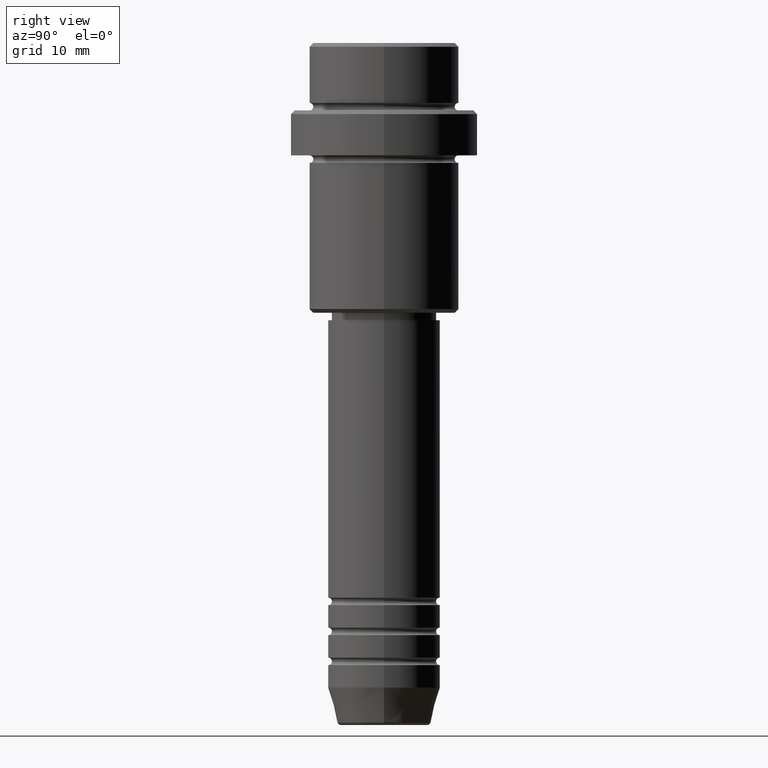
[diagram: clean part render]
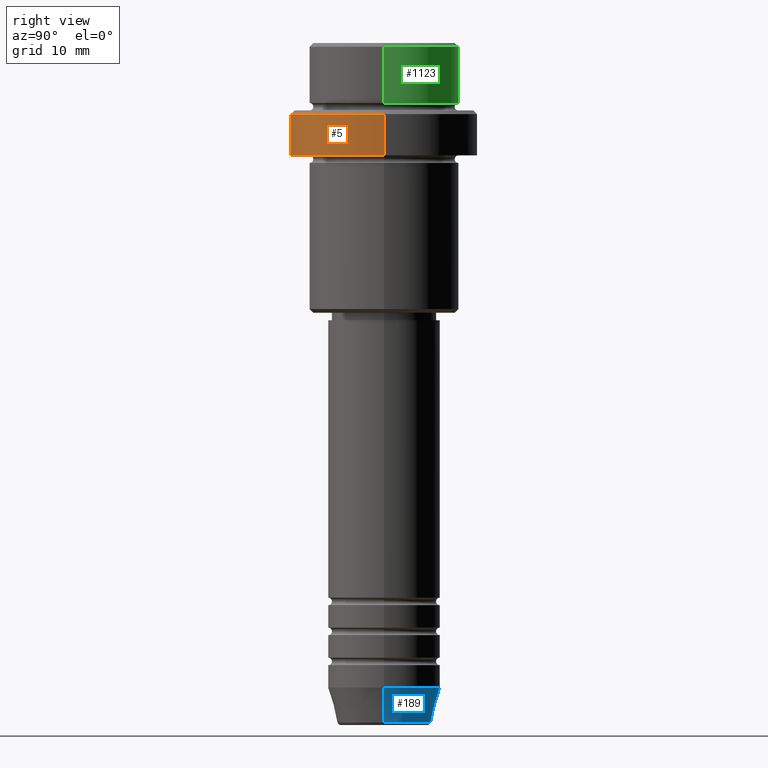
[diagram: same view with three faces highlighted in distinct colors, each labeled with its STEP entity id]
A machine part, right view with three faces highlighted in distinct colors.
Their STEP definitions:

[orange] entity #5 — the highlighted cylindrical surface (partial cylindrical patch) has radius 12.5 mm, axis along (-0, -0, 1).
#5 = ADVANCED_FACE ( 'NONE', ( #150 ), #225, .T. ) ;
#35 = CARTESIAN_POINT ( 'NONE',  ( -12.50000000000000000, 1.530808498934191521E-15, -9.500000000000007105 ) ) ;
#39 = VECTOR ( 'NONE', #1000, 1000.000000000000000 ) ;
#48 = CARTESIAN_POINT ( 'NONE',  ( -12.50000000000000000, 1.530808498934191521E-15, 0.000000000000000000 ) ) ;
#135 = CARTESIAN_POINT ( 'NONE',  ( 12.50000000000000000, 0.000000000000000000, -15.00000000000000178 ) ) ;
#150 = FACE_OUTER_BOUND ( 'NONE', #1355, .T. ) ;
#203 = ORIENTED_EDGE ( 'NONE', *, *, #827, .T. ) ;
#225 = CYLINDRICAL_SURFACE ( 'NONE', #446, 12.50000000000000000 ) ;
#230 = CIRCLE ( 'NONE', #520, 12.50000000000000000 ) ;
#322 = EDGE_CURVE ( 'NONE', #1103, #1318, #230, .T. ) ;
#334 = VERTEX_POINT ( 'NONE', #35 ) ;
#350 = CARTESIAN_POINT ( 'NONE',  ( 0.000000000000000000, 0.000000000000000000, -15.00000000000000178 ) ) ;
#354 = LINE ( 'NONE', #488, #39 ) ;
#420 = CARTESIAN_POINT ( 'NONE',  ( 12.50000000000000000, 0.000000000000000000, -9.500000000000007105 ) ) ;
#427 = VECTOR ( 'NONE', #711, 1000.000000000000000 ) ;
#446 = AXIS2_PLACEMENT_3D ( 'NONE', #454, #996, #985 ) ;
#454 = CARTESIAN_POINT ( 'NONE',  ( 0.000000000000000000, 0.000000000000000000, 0.000000000000000000 ) ) ;
#488 = CARTESIAN_POINT ( 'NONE',  ( 12.50000000000000000, 0.000000000000000000, 0.000000000000000000 ) ) ;
#520 = AXIS2_PLACEMENT_3D ( 'NONE', #350, #797, #1224 ) ;
#527 = CARTESIAN_POINT ( 'NONE',  ( -12.50000000000000000, 1.530808498934191521E-15, -15.00000000000000178 ) ) ;
#621 = VERTEX_POINT ( 'NONE', #420 ) ;
#651 = EDGE_CURVE ( 'NONE', #1103, #334, #1029, .T. ) ;
#711 = DIRECTION ( 'NONE',  ( -0.000000000000000000, -0.000000000000000000, 1.000000000000000000 ) ) ;
#713 = EDGE_CURVE ( 'NONE', #1318, #621, #354, .T. ) ;
#716 = DIRECTION ( 'NONE',  ( 0.000000000000000000, 0.000000000000000000, -1.000000000000000000 ) ) ;
#753 = ORIENTED_EDGE ( 'NONE', *, *, #322, .T. ) ;
#797 = DIRECTION ( 'NONE',  ( -0.000000000000000000, -0.000000000000000000, 1.000000000000000000 ) ) ;
#827 = EDGE_CURVE ( 'NONE', #621, #334, #1175, .T. ) ;
#939 = ORIENTED_EDGE ( 'NONE', *, *, #651, .F. ) ;
#944 = AXIS2_PLACEMENT_3D ( 'NONE', #1258, #716, #1150 ) ;
#985 = DIRECTION ( 'NONE',  ( 1.000000000000000000, 0.000000000000000000, 0.000000000000000000 ) ) ;
#996 = DIRECTION ( 'NONE',  ( -0.000000000000000000, -0.000000000000000000, 1.000000000000000000 ) ) ;
#1000 = DIRECTION ( 'NONE',  ( -0.000000000000000000, -0.000000000000000000, 1.000000000000000000 ) ) ;
#1029 = LINE ( 'NONE', #48, #427 ) ;
#1099 = ORIENTED_EDGE ( 'NONE', *, *, #713, .T. ) ;
#1103 = VERTEX_POINT ( 'NONE', #527 ) ;
#1150 = DIRECTION ( 'NONE',  ( 1.000000000000000000, 0.000000000000000000, 0.000000000000000000 ) ) ;
#1175 = CIRCLE ( 'NONE', #944, 12.50000000000000000 ) ;
#1224 = DIRECTION ( 'NONE',  ( 1.000000000000000000, 0.000000000000000000, 0.000000000000000000 ) ) ;
#1258 = CARTESIAN_POINT ( 'NONE',  ( 0.000000000000000000, 0.000000000000000000, -9.500000000000007105 ) ) ;
#1318 = VERTEX_POINT ( 'NONE', #135 ) ;
#1355 = EDGE_LOOP ( 'NONE', ( #939, #753, #1099, #203 ) ) ;

[blue] entity #189 — the highlighted conical surface has half-angle 15 deg.
#75 = VERTEX_POINT ( 'NONE', #694 ) ;
#139 = VERTEX_POINT ( 'NONE', #1297 ) ;
#189 = ADVANCED_FACE ( 'NONE', ( #1069 ), #424, .T. ) ;
#269 = DIRECTION ( 'NONE',  ( 0.2588190451025213501, 0.000000000000000000, 0.9659258262890680902 ) ) ;
#279 = DIRECTION ( 'NONE',  ( -0.000000000000000000, -0.000000000000000000, 1.000000000000000000 ) ) ;
#348 = CARTESIAN_POINT ( 'NONE',  ( 6.259553456999438659, 0.000000000000000000, -90.62940952255125637 ) ) ;
#384 = ORIENTED_EDGE ( 'NONE', *, *, #564, .T. ) ;
#390 = CARTESIAN_POINT ( 'NONE',  ( -7.500000000000000000, 9.184850993605147944E-16, -86.00000000000000000 ) ) ;
#424 = CONICAL_SURFACE ( 'NONE', #1217, 7.500000000000000000, 0.2617993877991500740 ) ;
#486 = VERTEX_POINT ( 'NONE', #1144 ) ;
#517 = DIRECTION ( 'NONE',  ( 1.000000000000000000, 0.000000000000000000, 0.000000000000000000 ) ) ;
#524 = EDGE_CURVE ( 'NONE', #1303, #486, #736, .T. ) ;
#535 = CARTESIAN_POINT ( 'NONE',  ( 0.000000000000000000, 0.000000000000000000, -86.00000000000000000 ) ) ;
#546 = ORIENTED_EDGE ( 'NONE', *, *, #1349, .F. ) ;
#564 = EDGE_CURVE ( 'NONE', #139, #75, #825, .T. ) ;
#587 = DIRECTION ( 'NONE',  ( 1.000000000000000000, 0.000000000000000000, 0.000000000000000000 ) ) ;
#596 = AXIS2_PLACEMENT_3D ( 'NONE', #714, #783, #587 ) ;
#675 = ORIENTED_EDGE ( 'NONE', *, *, #790, .T. ) ;
#694 = CARTESIAN_POINT ( 'NONE',  ( -7.500000000000000000, 9.184850993605147944E-16, -86.00000000000000000 ) ) ;
#701 = DIRECTION ( 'NONE',  ( 1.000000000000000000, 0.000000000000000000, 0.000000000000000000 ) ) ;
#714 = CARTESIAN_POINT ( 'NONE',  ( 0.000000000000000000, 0.000000000000000000, -90.62940952255125637 ) ) ;
#736 = LINE ( 'NONE', #851, #1174 ) ;
#783 = DIRECTION ( 'NONE',  ( -0.000000000000000000, -0.000000000000000000, 1.000000000000000000 ) ) ;
#790 = EDGE_CURVE ( 'NONE', #1303, #139, #965, .T. ) ;
#795 = ORIENTED_EDGE ( 'NONE', *, *, #524, .F. ) ;
#799 = AXIS2_PLACEMENT_3D ( 'NONE', #1370, #279, #701 ) ;
#825 = LINE ( 'NONE', #390, #905 ) ;
#851 = CARTESIAN_POINT ( 'NONE',  ( 7.500000000000000000, 0.000000000000000000, -86.00000000000000000 ) ) ;
#905 = VECTOR ( 'NONE', #1401, 1000.000000000000000 ) ;
#965 = CIRCLE ( 'NONE', #596, 6.259553456999438659 ) ;
#1051 = DIRECTION ( 'NONE',  ( -0.000000000000000000, -0.000000000000000000, 1.000000000000000000 ) ) ;
#1069 = FACE_OUTER_BOUND ( 'NONE', #1180, .T. ) ;
#1144 = CARTESIAN_POINT ( 'NONE',  ( 7.500000000000000000, 0.000000000000000000, -86.00000000000000000 ) ) ;
#1174 = VECTOR ( 'NONE', #269, 1000.000000000000000 ) ;
#1180 = EDGE_LOOP ( 'NONE', ( #675, #384, #546, #795 ) ) ;
#1217 = AXIS2_PLACEMENT_3D ( 'NONE', #535, #1051, #517 ) ;
#1297 = CARTESIAN_POINT ( 'NONE',  ( -6.259553456999439547, 8.425296549405630472E-16, -90.62940952255125637 ) ) ;
#1303 = VERTEX_POINT ( 'NONE', #348 ) ;
#1349 = EDGE_CURVE ( 'NONE', #486, #75, #1387, .T. ) ;
#1370 = CARTESIAN_POINT ( 'NONE',  ( 0.000000000000000000, 0.000000000000000000, -86.00000000000000000 ) ) ;
#1387 = CIRCLE ( 'NONE', #799, 7.500000000000000000 ) ;
#1401 = DIRECTION ( 'NONE',  ( -0.2588190451025213501, 3.169619151431772337E-17, 0.9659258262890680902 ) ) ;

[green] entity #1123 — the highlighted cylindrical surface (partial cylindrical patch) has radius 10 mm, axis along (-0, -0, 1).
#18 = CARTESIAN_POINT ( 'NONE',  ( -9.999999999999998224, 1.224646799147353059E-15, -0.5000000000000108802 ) ) ;
#113 = VERTEX_POINT ( 'NONE', #1146 ) ;
#132 = VERTEX_POINT ( 'NONE', #1187 ) ;
#156 = DIRECTION ( 'NONE',  ( -0.000000000000000000, -0.000000000000000000, 1.000000000000000000 ) ) ;
#167 = AXIS2_PLACEMENT_3D ( 'NONE', #429, #316, #754 ) ;
#173 = ORIENTED_EDGE ( 'NONE', *, *, #366, .T. ) ;
#195 = DIRECTION ( 'NONE',  ( -0.000000000000000000, -0.000000000000000000, 1.000000000000000000 ) ) ;
#258 = VECTOR ( 'NONE', #640, 1000.000000000000000 ) ;
#316 = DIRECTION ( 'NONE',  ( 0.000000000000000000, 0.000000000000000000, -1.000000000000000000 ) ) ;
#366 = EDGE_CURVE ( 'NONE', #1399, #132, #718, .T. ) ;
#429 = CARTESIAN_POINT ( 'NONE',  ( 0.000000000000000000, 0.000000000000000000, -0.5000000000000108802 ) ) ;
#450 = ORIENTED_EDGE ( 'NONE', *, *, #647, .F. ) ;
#511 = CARTESIAN_POINT ( 'NONE',  ( 9.999999999999998224, 0.000000000000000000, -7.999999999999998224 ) ) ;
#526 = ORIENTED_EDGE ( 'NONE', *, *, #1037, .T. ) ;
#577 = DIRECTION ( 'NONE',  ( -0.000000000000000000, -0.000000000000000000, 1.000000000000000000 ) ) ;
#640 = DIRECTION ( 'NONE',  ( -0.000000000000000000, -0.000000000000000000, 1.000000000000000000 ) ) ;
#647 = EDGE_CURVE ( 'NONE', #1399, #113, #1011, .T. ) ;
#680 = VECTOR ( 'NONE', #156, 1000.000000000000000 ) ;
#700 = ORIENTED_EDGE ( 'NONE', *, *, #1163, .T. ) ;
#718 = CIRCLE ( 'NONE', #769, 9.999999999999998224 ) ;
#733 = LINE ( 'NONE', #970, #258 ) ;
#744 = CIRCLE ( 'NONE', #167, 9.999999999999998224 ) ;
#754 = DIRECTION ( 'NONE',  ( 1.000000000000000000, 0.000000000000000000, 0.000000000000000000 ) ) ;
#760 = CYLINDRICAL_SURFACE ( 'NONE', #1108, 9.999999999999998224 ) ;
#769 = AXIS2_PLACEMENT_3D ( 'NONE', #1389, #577, #1214 ) ;
#970 = CARTESIAN_POINT ( 'NONE',  ( -9.999999999999998224, 1.224646799147353059E-15, 0.000000000000000000 ) ) ;
#1011 = LINE ( 'NONE', #1220, #680 ) ;
#1037 = EDGE_CURVE ( 'NONE', #132, #1228, #733, .T. ) ;
#1075 = EDGE_LOOP ( 'NONE', ( #173, #526, #700, #450 ) ) ;
#1108 = AXIS2_PLACEMENT_3D ( 'NONE', #1391, #195, #1294 ) ;
#1123 = ADVANCED_FACE ( 'NONE', ( #1404 ), #760, .T. ) ;
#1146 = CARTESIAN_POINT ( 'NONE',  ( 9.999999999999998224, 0.000000000000000000, -0.5000000000000108802 ) ) ;
#1163 = EDGE_CURVE ( 'NONE', #1228, #113, #744, .T. ) ;
#1187 = CARTESIAN_POINT ( 'NONE',  ( -9.999999999999998224, 1.224646799147353059E-15, -7.999999999999998224 ) ) ;
#1214 = DIRECTION ( 'NONE',  ( 1.000000000000000000, 0.000000000000000000, 0.000000000000000000 ) ) ;
#1220 = CARTESIAN_POINT ( 'NONE',  ( 9.999999999999998224, 0.000000000000000000, 0.000000000000000000 ) ) ;
#1228 = VERTEX_POINT ( 'NONE', #18 ) ;
#1294 = DIRECTION ( 'NONE',  ( 1.000000000000000000, 0.000000000000000000, 0.000000000000000000 ) ) ;
#1389 = CARTESIAN_POINT ( 'NONE',  ( 0.000000000000000000, 0.000000000000000000, -7.999999999999998224 ) ) ;
#1391 = CARTESIAN_POINT ( 'NONE',  ( 0.000000000000000000, 0.000000000000000000, 0.000000000000000000 ) ) ;
#1399 = VERTEX_POINT ( 'NONE', #511 ) ;
#1404 = FACE_OUTER_BOUND ( 'NONE', #1075, .T. ) ;